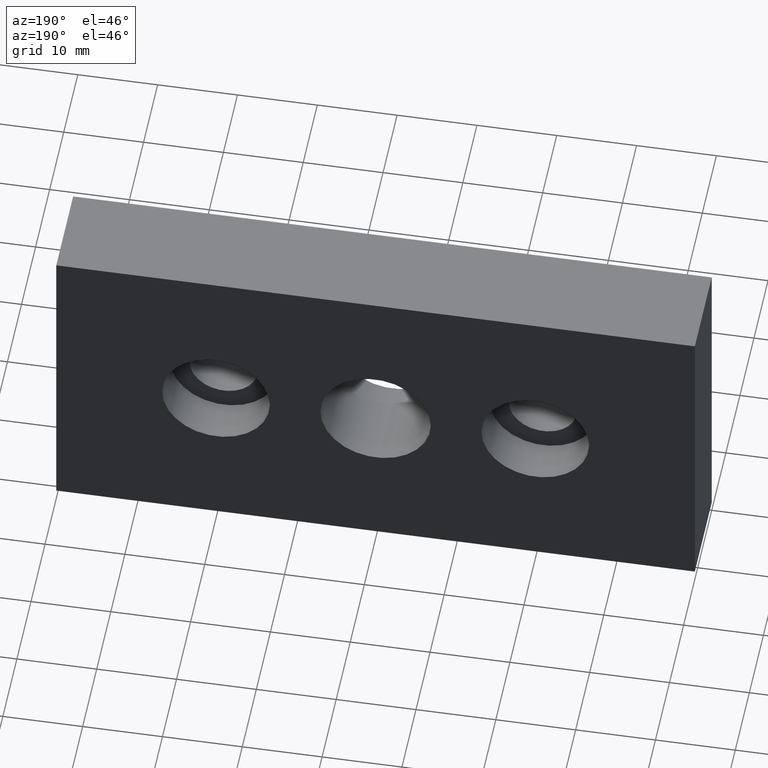
[diagram: clean part render]
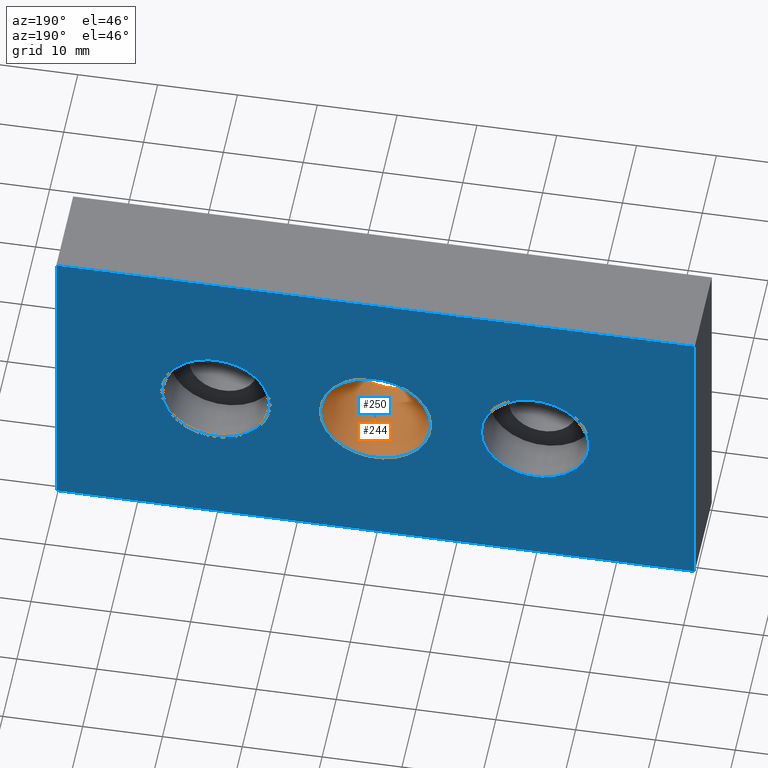
[diagram: same view with the hole feature highlighted: cylindrical wall and planar end face, labeled with their STEP entity ids]
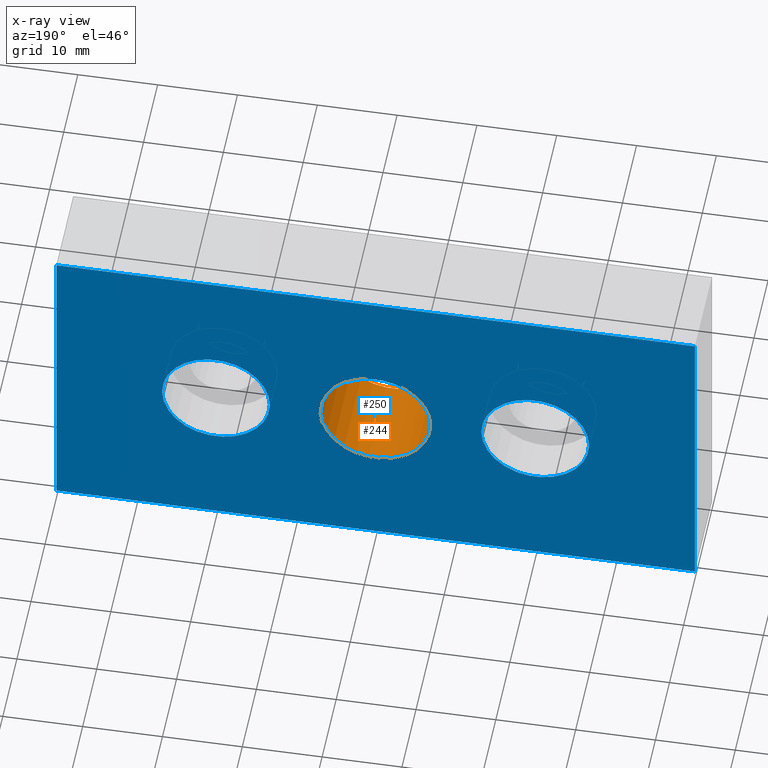
[diagram: x-ray of the same camera — body ghosted, the hole faces saturated]
A machine part, auxiliary view. The highlighted faces form one hole feature of diameter 13.835 mm: the cylindrical wall (entity #244, orange) and its adjacent planar end face (entity #250, blue) — they share a circular edge in the B-rep.
The next image is the same camera in x-ray (body ghosted, the hole faces saturated) — the bore reads through the body.
Wall:
#19=LINE('',#415,#36);
#36=VECTOR('',#347,6.9175);
#53=CYLINDRICAL_SURFACE('',#289,6.9175);
#68=FACE_OUTER_BOUND('',#83,.T.);
#83=EDGE_LOOP('',(#192,#193,#194,#195,#196));
#108=CIRCLE('',#290,6.9175);
#109=CIRCLE('',#291,6.9175);
#110=CIRCLE('',#292,6.9175);
#123=VERTEX_POINT('',#410);
#124=VERTEX_POINT('',#411);
#125=VERTEX_POINT('',#414);
#150=EDGE_CURVE('',#123,#124,#108,.T.);
#151=EDGE_CURVE('',#124,#123,#109,.T.);
#152=EDGE_CURVE('',#124,#125,#19,.T.);
#153=EDGE_CURVE('',#125,#125,#110,.T.);
#192=ORIENTED_EDGE('',*,*,#150,.F.);
#193=ORIENTED_EDGE('',*,*,#151,.F.);
#194=ORIENTED_EDGE('',*,*,#152,.T.);
#195=ORIENTED_EDGE('',*,*,#153,.F.);
#196=ORIENTED_EDGE('',*,*,#152,.F.);
#244=ADVANCED_FACE('',(#68),#53,.F.);
#289=AXIS2_PLACEMENT_3D('',#409,#341,#342);
#290=AXIS2_PLACEMENT_3D('',#412,#343,#344);
#291=AXIS2_PLACEMENT_3D('',#413,#345,#346);
#292=AXIS2_PLACEMENT_3D('',#416,#348,#349);
#341=DIRECTION('center_axis',(0.,1.,0.));
#342=DIRECTION('ref_axis',(1.,0.,0.));
#343=DIRECTION('center_axis',(0.,-1.,0.));
#344=DIRECTION('ref_axis',(1.,0.,0.));
#345=DIRECTION('center_axis',(0.,-1.,0.));
#346=DIRECTION('ref_axis',(1.,0.,0.));
#347=DIRECTION('',(0.,-1.,0.));
#348=DIRECTION('center_axis',(0.,1.,0.));
#349=DIRECTION('ref_axis',(1.,0.,0.));
#409=CARTESIAN_POINT('Origin',(0.,-78.2441133814278,0.));
#410=CARTESIAN_POINT('',(6.9175,12.,0.));
#411=CARTESIAN_POINT('',(-6.9175,12.,8.47149423310182E-16));
#412=CARTESIAN_POINT('Origin',(0.,12.,0.));
#413=CARTESIAN_POINT('Origin',(0.,12.,0.));
#414=CARTESIAN_POINT('',(-6.9175,0.,8.47149423310182E-16));
#415=CARTESIAN_POINT('',(-6.9175,-78.2441133814278,8.47149423310182E-16));
#416=CARTESIAN_POINT('Origin',(0.,0.,0.));
End face:
#22=LINE('',#424,#39);
#25=LINE('',#430,#42);
#28=LINE('',#436,#45);
#31=LINE('',#440,#48);
#39=VECTOR('',#354,10.);
#42=VECTOR('',#359,10.);
#45=VECTOR('',#364,10.);
#48=VECTOR('',#369,10.);
#59=FACE_BOUND('',#93,.T.);
#60=FACE_BOUND('',#94,.T.);
#61=FACE_BOUND('',#95,.T.);
#74=FACE_OUTER_BOUND('',#92,.T.);
#92=EDGE_LOOP('',(#220,#221,#222,#223));
#93=EDGE_LOOP('',(#224,#225));
#94=EDGE_LOOP('',(#226,#227));
#95=EDGE_LOOP('',(#228,#229));
#99=CIRCLE('',#276,6.75);
#100=CIRCLE('',#277,6.75);
#105=CIRCLE('',#285,6.75);
#106=CIRCLE('',#286,6.75);
#108=CIRCLE('',#290,6.9175);
#109=CIRCLE('',#291,6.9175);
#114=VERTEX_POINT('',#383);
#115=VERTEX_POINT('',#384);
#120=VERTEX_POINT('',#400);
#121=VERTEX_POINT('',#401);
#123=VERTEX_POINT('',#410);
#124=VERTEX_POINT('',#411);
#128=VERTEX_POINT('',#421);
#129=VERTEX_POINT('',#423);
#131=VERTEX_POINT('',#429);
#133=VERTEX_POINT('',#435);
#137=EDGE_CURVE('',#114,#115,#99,.T.);
#138=EDGE_CURVE('',#115,#114,#100,.T.);
#145=EDGE_CURVE('',#120,#121,#105,.T.);
#146=EDGE_CURVE('',#121,#120,#106,.T.);
#150=EDGE_CURVE('',#123,#124,#108,.T.);
#151=EDGE_CURVE('',#124,#123,#109,.T.);
#156=EDGE_CURVE('',#129,#128,#22,.T.);
#159=EDGE_CURVE('',#131,#129,#25,.T.);
#162=EDGE_CURVE('',#133,#131,#28,.T.);
#165=EDGE_CURVE('',#128,#133,#31,.T.);
#220=ORIENTED_EDGE('',*,*,#165,.T.);
#221=ORIENTED_EDGE('',*,*,#162,.T.);
#222=ORIENTED_EDGE('',*,*,#159,.T.);
#223=ORIENTED_EDGE('',*,*,#156,.T.);
#224=ORIENTED_EDGE('',*,*,#137,.T.);
#225=ORIENTED_EDGE('',*,*,#138,.T.);
#226=ORIENTED_EDGE('',*,*,#145,.T.);
#227=ORIENTED_EDGE('',*,*,#146,.T.);
#228=ORIENTED_EDGE('',*,*,#150,.T.);
#229=ORIENTED_EDGE('',*,*,#151,.T.);
#237=PLANE('',#298);
#250=ADVANCED_FACE('',(#74,#59,#60,#61),#237,.T.);
#276=AXIS2_PLACEMENT_3D('',#385,#311,#312);
#277=AXIS2_PLACEMENT_3D('',#386,#313,#314);
#285=AXIS2_PLACEMENT_3D('',#402,#331,#332);
#286=AXIS2_PLACEMENT_3D('',#403,#333,#334);
#290=AXIS2_PLACEMENT_3D('',#412,#343,#344);
#291=AXIS2_PLACEMENT_3D('',#413,#345,#346);
#298=AXIS2_PLACEMENT_3D('',#442,#372,#373);
#311=DIRECTION('center_axis',(0.,-1.,0.));
#312=DIRECTION('ref_axis',(1.,0.,0.));
#313=DIRECTION('center_axis',(0.,-1.,0.));
#314=DIRECTION('ref_axis',(1.,0.,0.));
#331=DIRECTION('center_axis',(0.,-1.,0.));
#332=DIRECTION('ref_axis',(1.,0.,0.));
#333=DIRECTION('center_axis',(0.,-1.,0.));
#334=DIRECTION('ref_axis',(1.,0.,0.));
#343=DIRECTION('center_axis',(0.,-1.,0.));
#344=DIRECTION('ref_axis',(1.,0.,0.));
#345=DIRECTION('center_axis',(0.,-1.,0.));
#346=DIRECTION('ref_axis',(1.,0.,0.));
#354=DIRECTION('',(0.,0.,1.));
#359=DIRECTION('',(-1.,0.,0.));
#364=DIRECTION('',(0.,0.,-1.));
#369=DIRECTION('',(1.,0.,0.));
#372=DIRECTION('center_axis',(0.,1.,0.));
#373=DIRECTION('ref_axis',(0.,0.,1.));
#383=CARTESIAN_POINT('',(-13.25,12.,0.));
#384=CARTESIAN_POINT('',(-26.75,12.,8.26636589424463E-16));
#385=CARTESIAN_POINT('Origin',(-20.,12.,0.));
#386=CARTESIAN_POINT('Origin',(-20.,12.,0.));
#400=CARTESIAN_POINT('',(26.75,12.,0.));
#401=CARTESIAN_POINT('',(13.25,12.,8.26636589424463E-16));
#402=CARTESIAN_POINT('Origin',(20.,12.,0.));
#403=CARTESIAN_POINT('Origin',(20.,12.,0.));
#410=CARTESIAN_POINT('',(6.9175,12.,0.));
#411=CARTESIAN_POINT('',(-6.9175,12.,8.47149423310182E-16));
#412=CARTESIAN_POINT('Origin',(0.,12.,0.));
#413=CARTESIAN_POINT('Origin',(0.,12.,0.));
#421=CARTESIAN_POINT('',(-40.,12.,20.));
#423=CARTESIAN_POINT('',(-40.,12.,-20.));
#424=CARTESIAN_POINT('',(-40.,12.,20.));
#429=CARTESIAN_POINT('',(40.,12.,-20.));
#430=CARTESIAN_POINT('',(-40.,12.,-20.));
#435=CARTESIAN_POINT('',(40.,12.,20.));
#436=CARTESIAN_POINT('',(40.,12.,-20.));
#440=CARTESIAN_POINT('',(40.,12.,20.));
#442=CARTESIAN_POINT('Origin',(0.,12.,0.));